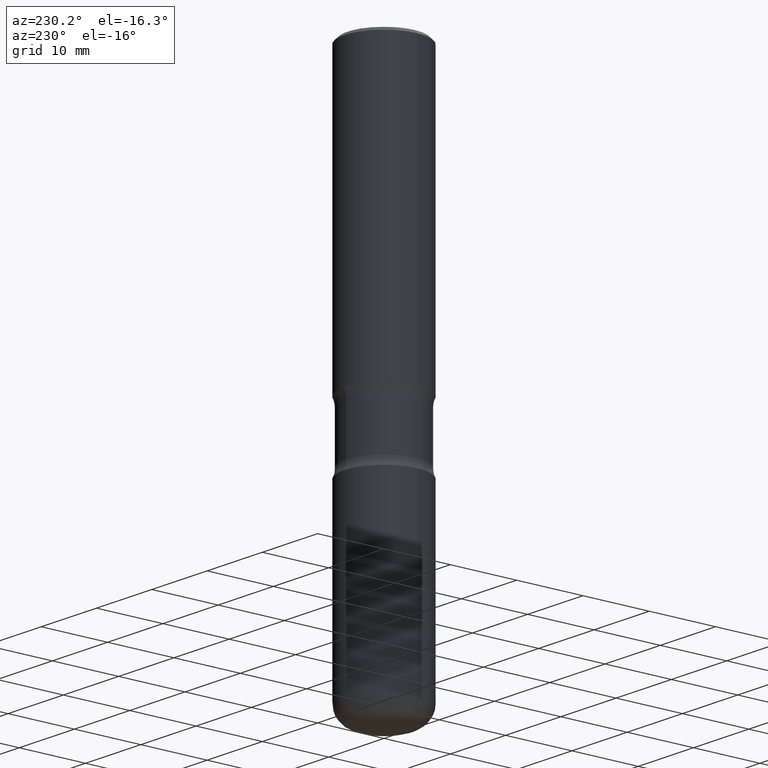
[diagram: clean part render]
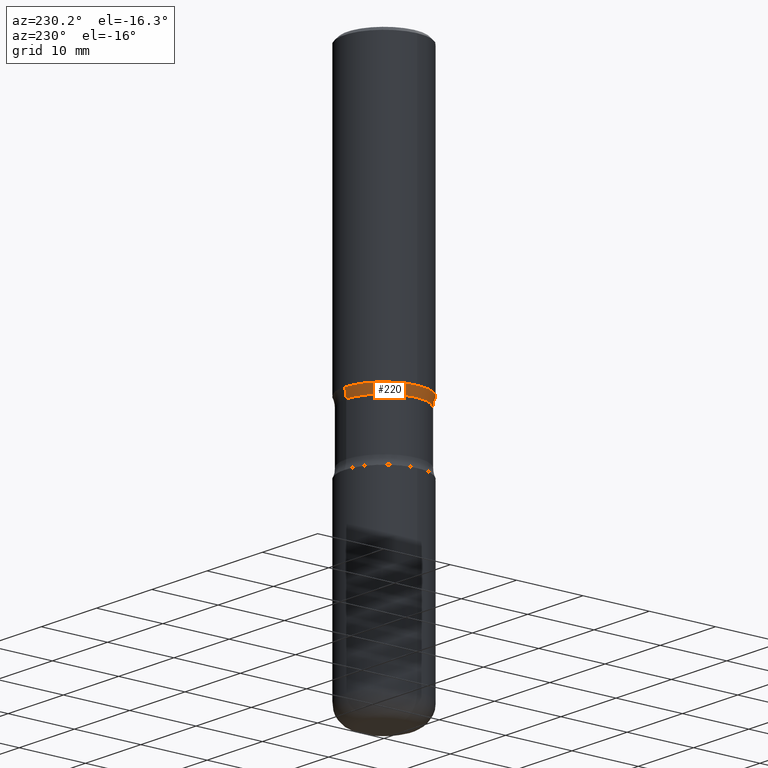
[diagram: same view with one face highlighted and labeled with its STEP entity id]
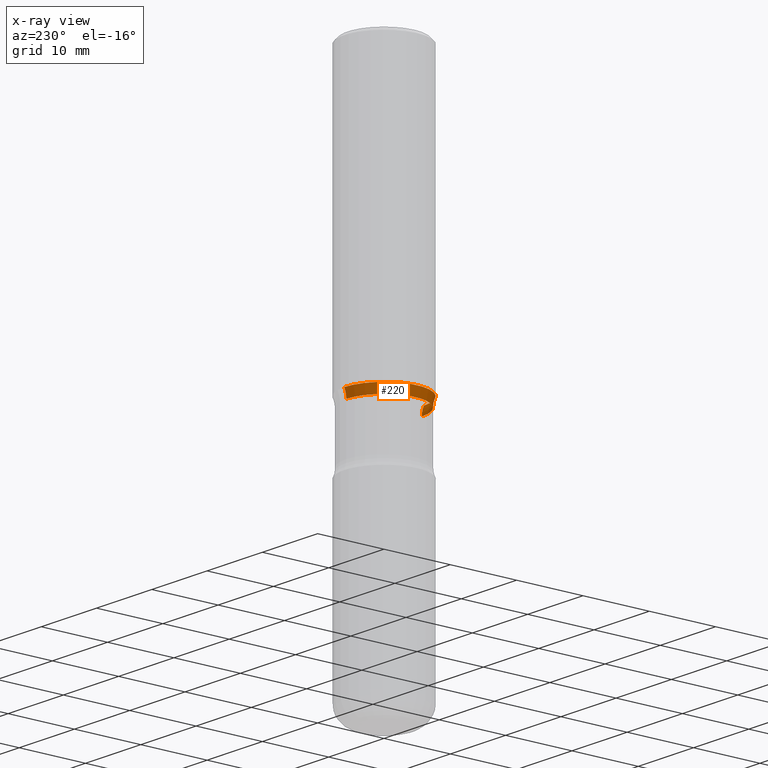
[diagram: x-ray of the same camera — body ghosted, the highlighted face saturated]
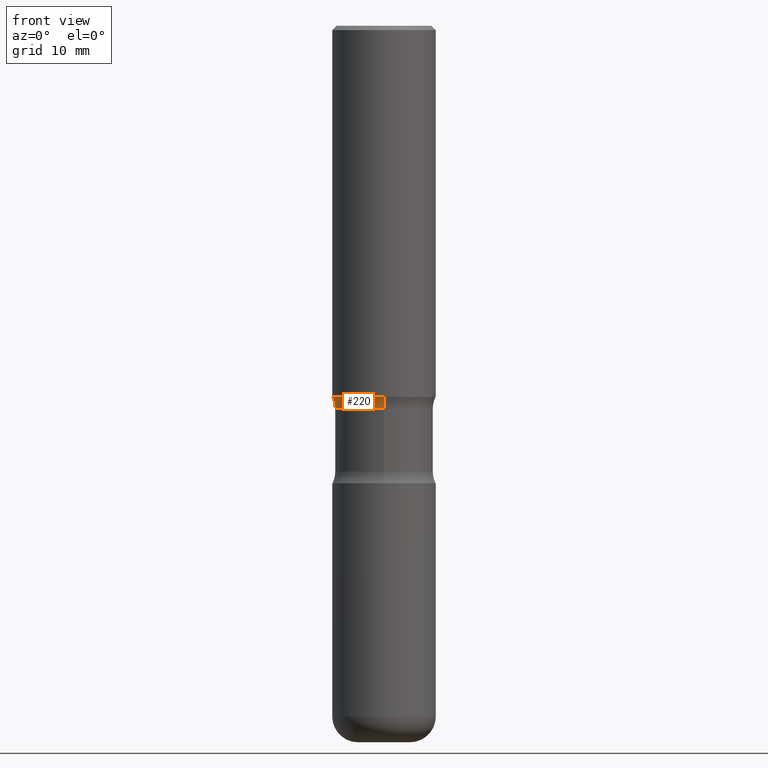
[diagram: same view with one face highlighted and labeled with its STEP entity id]
A machine part, auxiliary view. The second image highlights one B-rep face of the part: STEP entity #220.
The next image is the same camera in x-ray: the body ghosted, the highlighted face saturated — about 0% of this face is hidden behind the body in this view.
A second angle (front view) of the same face is appended — the face is thin or edge-on in the first view.
In plain terms, the highlighted toroidal blend (fillet) surface has major radius 8.8646 mm and minor (blend) radius 3.175 mm.
Its self-contained STEP definition (entity closure, byte-faithful):
#13 = CIRCLE ( 'NONE', #244, 0.2362000000000001598 ) ;
#23 = VERTEX_POINT ( 'NONE', #538 ) ;
#26 = AXIS2_PLACEMENT_3D ( 'NONE', #453, #322, #280 ) ;
#35 = DIRECTION ( 'NONE',  ( 2.394995749868806294E-29, -3.563761628236091094E-15, -1.000000000000000000 ) ) ;
#37 = EDGE_CURVE ( 'NONE', #23, #308, #13, .T. ) ;
#81 = DIRECTION ( 'NONE',  ( 1.000000000000000000, -6.860497997771530774E-15, 4.839913701373677961E-29 ) ) ;
#103 = ORIENTED_EDGE ( 'NONE', *, *, #396, .F. ) ;
#108 = DIRECTION ( 'NONE',  ( 2.394995749868806294E-29, -3.563761628236091094E-15, -1.000000000000000000 ) ) ;
#128 = CIRCLE ( 'NONE', #349, 0.2240000000000000324 ) ;
#155 = FACE_OUTER_BOUND ( 'NONE', #418, .T. ) ;
#160 = CARTESIAN_POINT ( 'NONE',  ( -2.394313801222220614E-15, -0.3490000000000059721, -1.746762417324140282 ) ) ;
#180 = EDGE_CURVE ( 'NONE', #228, #23, #512, .T. ) ;
#193 = ORIENTED_EDGE ( 'NONE', *, *, #37, .T. ) ;
#194 = CIRCLE ( 'NONE', #26, 0.1250000000000000000 ) ;
#220 = ADVANCED_FACE ( 'NONE', ( #155 ), #246, .F. ) ;
#228 = VERTEX_POINT ( 'NONE', #385 ) ;
#244 = AXIS2_PLACEMENT_3D ( 'NONE', #315, #108, #415 ) ;
#246 = TOROIDAL_SURFACE ( 'NONE', #518, 0.3489999999999999769, 0.1250000000000000000 ) ;
#260 = CARTESIAN_POINT ( 'NONE',  ( 4.288805644831536135E-29, -6.074224824657373494E-15, -1.746762417324141614 ) ) ;
#280 = DIRECTION ( 'NONE',  ( -6.982962677686266711E-15, -1.000000000000000000, 0.000000000000000000 ) ) ;
#295 = DIRECTION ( 'NONE',  ( 6.982962677686265133E-15, 1.000000000000000000, -3.563761628236091094E-15 ) ) ;
#298 = EDGE_CURVE ( 'NONE', #228, #393, #128, .T. ) ;
#308 = VERTEX_POINT ( 'NONE', #558 ) ;
#314 = CARTESIAN_POINT ( 'NONE',  ( 1.564183639801766791E-15, 0.2239999999999939539, -1.746762417324142502 ) ) ;
#315 = CARTESIAN_POINT ( 'NONE',  ( 4.159805384262556359E-29, -5.882272008593556915E-15, -1.692899999999999627 ) ) ;
#322 = DIRECTION ( 'NONE',  ( -1.000000000000000000, 6.982962677686265922E-15, -4.883557194083112340E-29 ) ) ;
#349 = AXIS2_PLACEMENT_3D ( 'NONE', #260, #444, #437 ) ;
#385 = CARTESIAN_POINT ( 'NONE',  ( -1.578600589287187205E-15, -0.2240000000000060554, -1.746762417324140948 ) ) ;
#393 = VERTEX_POINT ( 'NONE', #314 ) ;
#396 = EDGE_CURVE ( 'NONE', #393, #308, #194, .T. ) ;
#415 = DIRECTION ( 'NONE',  ( 6.982962677686265922E-15, 1.000000000000000000, -3.469747663417774636E-15 ) ) ;
#418 = EDGE_LOOP ( 'NONE', ( #541, #503, #193, #103 ) ) ;
#421 = DIRECTION ( 'NONE',  ( 6.860497997771529985E-15, 1.000000000000000000, 0.000000000000000000 ) ) ;
#437 = DIRECTION ( 'NONE',  ( 6.982962677686265922E-15, 1.000000000000000000, -3.658724991514637697E-15 ) ) ;
#444 = DIRECTION ( 'NONE',  ( 2.394995749868806294E-29, -3.563761628236091094E-15, -1.000000000000000000 ) ) ;
#450 = AXIS2_PLACEMENT_3D ( 'NONE', #160, #81, #421 ) ;
#453 = CARTESIAN_POINT ( 'NONE',  ( 2.437053974512549538E-15, 0.3489999999999939262, -1.746762417324142946 ) ) ;
#463 = CARTESIAN_POINT ( 'NONE',  ( 4.319343984834906171E-29, -6.030492183638177096E-15, -1.746762417324141614 ) ) ;
#503 = ORIENTED_EDGE ( 'NONE', *, *, #180, .T. ) ;
#512 = CIRCLE ( 'NONE', #450, 0.1250000000000000000 ) ;
#518 = AXIS2_PLACEMENT_3D ( 'NONE', #463, #35, #295 ) ;
#538 = CARTESIAN_POINT ( 'NONE',  ( -1.620449627073595044E-15, -0.2362000000000060163, -1.692899999999998739 ) ) ;
#541 = ORIENTED_EDGE ( 'NONE', *, *, #298, .F. ) ;
#558 = CARTESIAN_POINT ( 'NONE',  ( 1.649375784469538335E-15, 0.2361999999999943312, -1.692900000000000293 ) ) ;